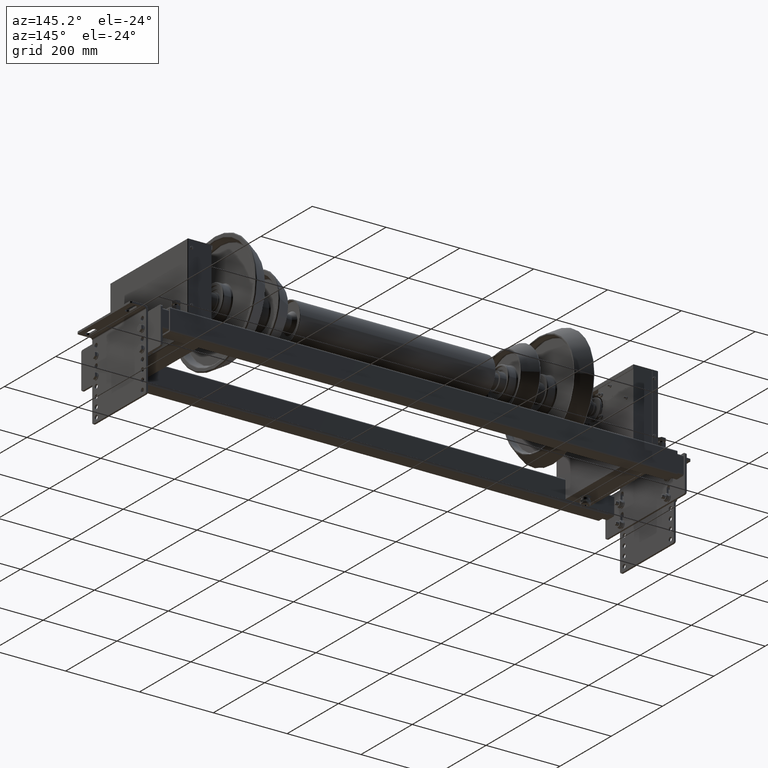
[diagram: clean part render]
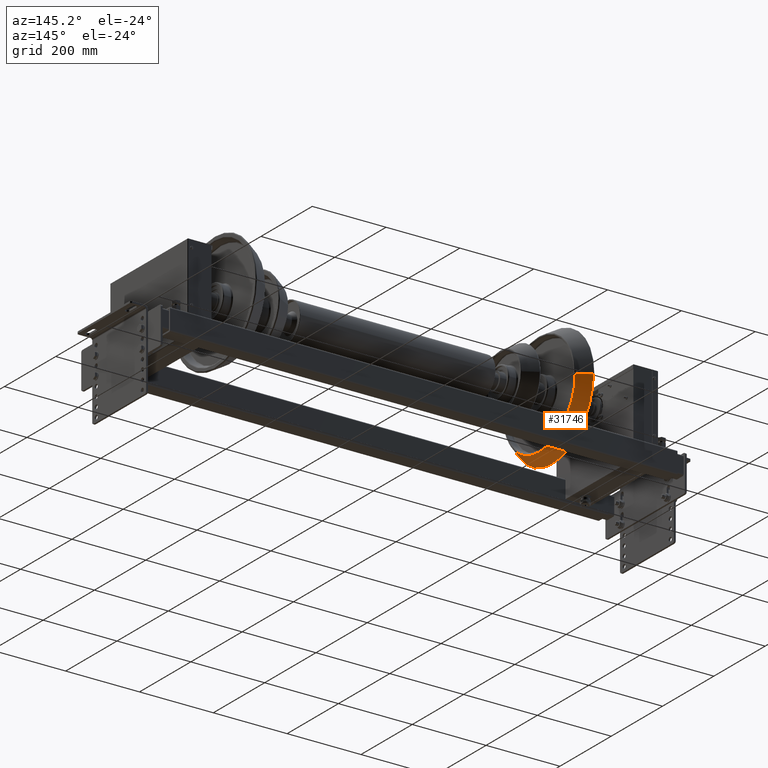
[diagram: same view with one face highlighted and labeled with its STEP entity id]
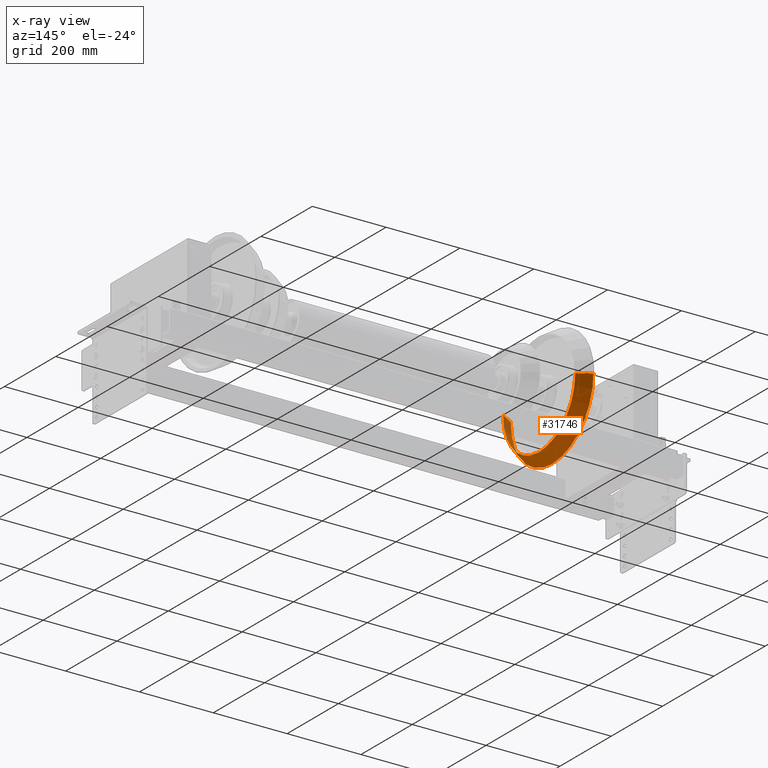
[diagram: x-ray of the same camera — body ghosted, the highlighted face saturated]
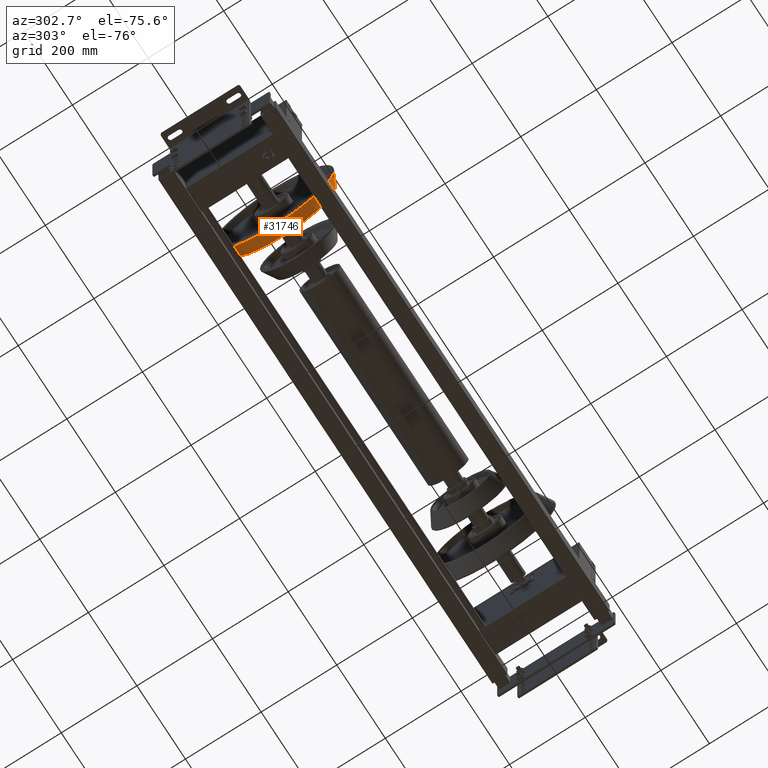
[diagram: same view with one face highlighted and labeled with its STEP entity id]
A machine part, auxiliary view. The second image highlights one B-rep face of the part: STEP entity #31746.
The next image is the same camera in x-ray: the body ghosted, the highlighted face saturated — about 5% of this face is hidden behind the body in this view.
A second angle (auxiliary view) of the same face is appended — the face is thin or edge-on in the first view.
In plain terms, the highlighted conical surface has half-angle 30 deg.
Its self-contained STEP definition (entity closure, byte-faithful):
#30491=CARTESIAN_POINT('',(16.249999999999972,-1.970811E-014,160.928947258123910));
#30492=VERTEX_POINT('',#30491);
#30500=CARTESIAN_POINT('',(16.249999999999975,-160.928947258123910,-1.970811E-014));
#30501=VERTEX_POINT('',#30500);
#30502=CARTESIAN_POINT('',(16.249999999999972,0.0,0.0));
#30503=DIRECTION('',(1.0,0.0,0.0));
#30504=DIRECTION('',(0.0,1.0,0.0));
#30505=AXIS2_PLACEMENT_3D('',#30502,#30503,#30504);
#30506=CIRCLE('',#30505,160.928947258123910);
#30507=EDGE_CURVE('',#30492,#30501,#30506,.T.);
#30524=CARTESIAN_POINT('',(16.249999999999972,160.928947258123910,0.0));
#30525=VERTEX_POINT('',#30524);
#30526=CARTESIAN_POINT('',(-18.749999999999972,140.721687836487040,0.0));
#30527=VERTEX_POINT('',#30526);
#30528=CARTESIAN_POINT('',(16.249999999999972,160.928947258123910,0.0));
#30529=DIRECTION('',(-0.866025403784438,-0.500000000000000,0.0));
#30530=VECTOR('',#30529,40.414518843273747);
#30531=LINE('',#30528,#30530);
#30532=EDGE_CURVE('',#30525,#30527,#30531,.T.);
#30542=CARTESIAN_POINT('',(-18.749999999999975,-140.721687836487040,-1.723344E-014));
#30543=VERTEX_POINT('',#30542);
#30544=CARTESIAN_POINT('',(16.249999999999975,-160.928947258123910,-1.970811E-014));
#30545=DIRECTION('',(-0.866025403784439,0.500000000000000,6.123234E-017));
#30546=VECTOR('',#30545,40.414518843273747);
#30547=LINE('',#30544,#30546);
#30548=EDGE_CURVE('',#30501,#30543,#30547,.T.);
#30584=CARTESIAN_POINT('',(-18.749999999999972,-1.723344E-014,140.721687836487040));
#30585=VERTEX_POINT('',#30584);
#30586=CARTESIAN_POINT('',(-18.749999999999972,0.0,0.0));
#30587=DIRECTION('',(1.0,0.0,0.0));
#30588=DIRECTION('',(0.0,1.0,0.0));
#30589=AXIS2_PLACEMENT_3D('',#30586,#30587,#30588);
#30590=CIRCLE('',#30589,140.721687836487040);
#30591=EDGE_CURVE('',#30585,#30543,#30590,.T.);
#31716=CARTESIAN_POINT('',(-18.749999999999972,0.0,0.0));
#31717=DIRECTION('',(1.0,0.0,0.0));
#31718=DIRECTION('',(0.0,1.0,0.0));
#31719=AXIS2_PLACEMENT_3D('',#31716,#31717,#31718);
#31720=CIRCLE('',#31719,140.721687836487040);
#31721=EDGE_CURVE('',#30527,#30585,#31720,.T.);
#31727=CARTESIAN_POINT('',(-1.250000000000000,0.0,0.0));
#31728=DIRECTION('',(1.0,0.0,0.0));
#31729=DIRECTION('',(0.0,1.0,0.0));
#31730=AXIS2_PLACEMENT_3D('',#31727,#31728,#31729);
#31731=CONICAL_SURFACE('',#31730,150.825317547305470,30.000000000000018);
#31732=ORIENTED_EDGE('',*,*,#30532,.T.);
#31733=ORIENTED_EDGE('',*,*,#31721,.T.);
#31734=ORIENTED_EDGE('',*,*,#30591,.T.);
#31735=ORIENTED_EDGE('',*,*,#30548,.F.);
#31736=ORIENTED_EDGE('',*,*,#30507,.F.);
#31737=CARTESIAN_POINT('',(16.249999999999972,0.0,0.0));
#31738=DIRECTION('',(1.0,0.0,0.0));
#31739=DIRECTION('',(0.0,1.0,0.0));
#31740=AXIS2_PLACEMENT_3D('',#31737,#31738,#31739);
#31741=CIRCLE('',#31740,160.928947258123910);
#31742=EDGE_CURVE('',#30525,#30492,#31741,.T.);
#31743=ORIENTED_EDGE('',*,*,#31742,.F.);
#31744=EDGE_LOOP('',(#31732,#31733,#31734,#31735,#31736,#31743));
#31745=FACE_OUTER_BOUND('',#31744,.T.);
#31746=ADVANCED_FACE('',(#31745),#31731,.T.);